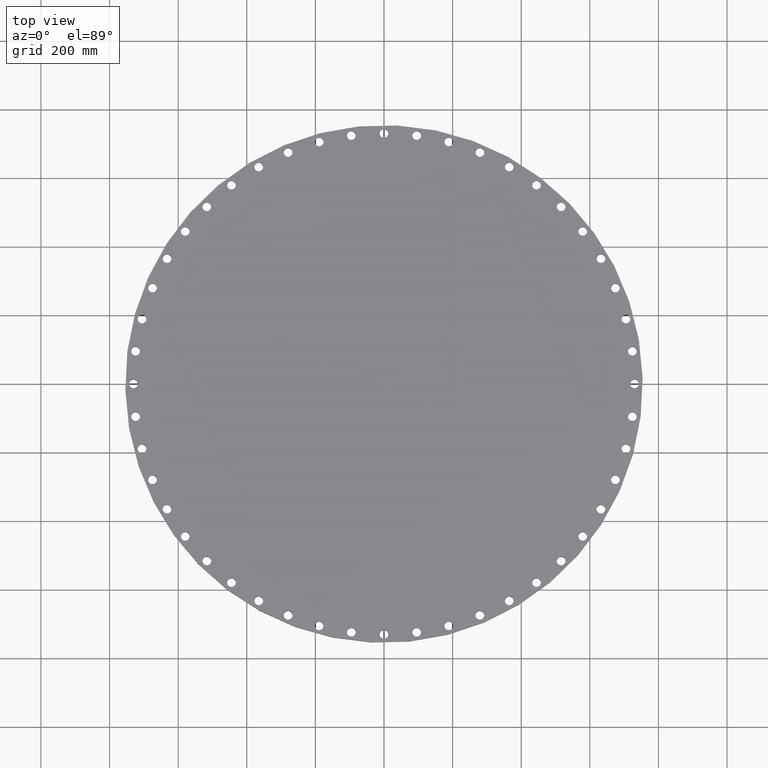
[diagram: clean part render]
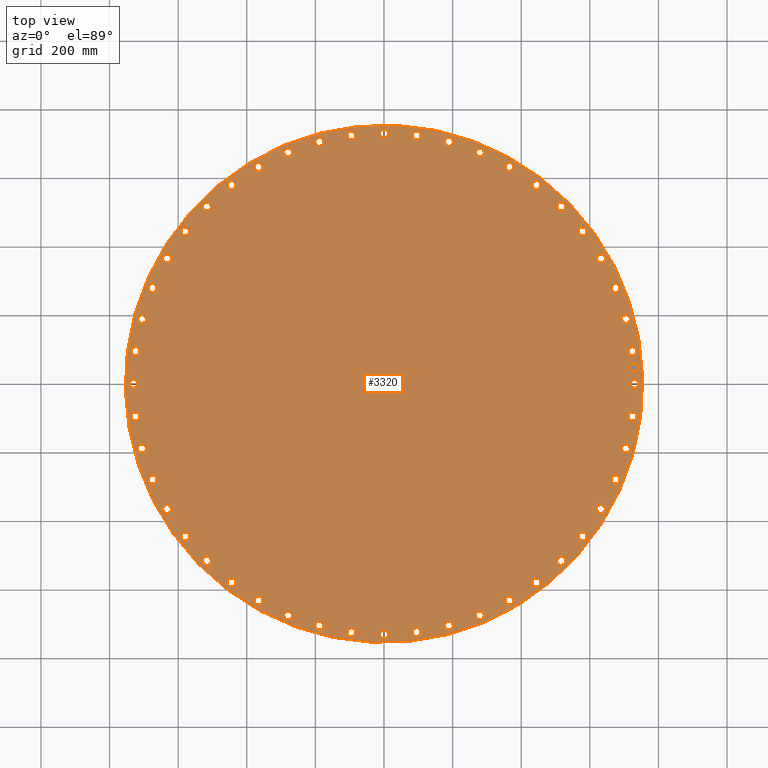
[diagram: same view with one face highlighted and labeled with its STEP entity id]
A machine part, top view. The second image highlights one B-rep face of the part: STEP entity #3320.
In plain terms, the highlighted planar face has unit normal (0, 0, -1).
Its self-contained STEP definition (entity closure, byte-faithful):
#65=AXIS2_PLACEMENT_3D('Circle Axis2P3D',#63,#64,$) ;
#82=AXIS2_PLACEMENT_3D('Circle Axis2P3D',#80,#81,$) ;
#115=AXIS2_PLACEMENT_3D('Circle Axis2P3D',#113,#114,$) ;
#139=AXIS2_PLACEMENT_3D('Circle Axis2P3D',#137,#138,$) ;
#1101=AXIS2_PLACEMENT_3D('Circle Axis2P3D',#1099,#1100,$) ;
#1113=AXIS2_PLACEMENT_3D('Circle Axis2P3D',#1111,#1112,$) ;
#1144=AXIS2_PLACEMENT_3D('Circle Axis2P3D',#1142,#1143,$) ;
#1156=AXIS2_PLACEMENT_3D('Circle Axis2P3D',#1154,#1155,$) ;
#1187=AXIS2_PLACEMENT_3D('Circle Axis2P3D',#1185,#1186,$) ;
#1199=AXIS2_PLACEMENT_3D('Circle Axis2P3D',#1197,#1198,$) ;
#1230=AXIS2_PLACEMENT_3D('Circle Axis2P3D',#1228,#1229,$) ;
#1242=AXIS2_PLACEMENT_3D('Circle Axis2P3D',#1240,#1241,$) ;
#1273=AXIS2_PLACEMENT_3D('Circle Axis2P3D',#1271,#1272,$) ;
#1285=AXIS2_PLACEMENT_3D('Circle Axis2P3D',#1283,#1284,$) ;
#1316=AXIS2_PLACEMENT_3D('Circle Axis2P3D',#1314,#1315,$) ;
#1328=AXIS2_PLACEMENT_3D('Circle Axis2P3D',#1326,#1327,$) ;
#1359=AXIS2_PLACEMENT_3D('Circle Axis2P3D',#1357,#1358,$) ;
#1371=AXIS2_PLACEMENT_3D('Circle Axis2P3D',#1369,#1370,$) ;
#1402=AXIS2_PLACEMENT_3D('Circle Axis2P3D',#1400,#1401,$) ;
#1414=AXIS2_PLACEMENT_3D('Circle Axis2P3D',#1412,#1413,$) ;
#1445=AXIS2_PLACEMENT_3D('Circle Axis2P3D',#1443,#1444,$) ;
#1457=AXIS2_PLACEMENT_3D('Circle Axis2P3D',#1455,#1456,$) ;
#1488=AXIS2_PLACEMENT_3D('Circle Axis2P3D',#1486,#1487,$) ;
#1500=AXIS2_PLACEMENT_3D('Circle Axis2P3D',#1498,#1499,$) ;
#1531=AXIS2_PLACEMENT_3D('Circle Axis2P3D',#1529,#1530,$) ;
#1543=AXIS2_PLACEMENT_3D('Circle Axis2P3D',#1541,#1542,$) ;
#1574=AXIS2_PLACEMENT_3D('Circle Axis2P3D',#1572,#1573,$) ;
#1586=AXIS2_PLACEMENT_3D('Circle Axis2P3D',#1584,#1585,$) ;
#1617=AXIS2_PLACEMENT_3D('Circle Axis2P3D',#1615,#1616,$) ;
#1629=AXIS2_PLACEMENT_3D('Circle Axis2P3D',#1627,#1628,$) ;
#1660=AXIS2_PLACEMENT_3D('Circle Axis2P3D',#1658,#1659,$) ;
#1672=AXIS2_PLACEMENT_3D('Circle Axis2P3D',#1670,#1671,$) ;
#1703=AXIS2_PLACEMENT_3D('Circle Axis2P3D',#1701,#1702,$) ;
#1715=AXIS2_PLACEMENT_3D('Circle Axis2P3D',#1713,#1714,$) ;
#1746=AXIS2_PLACEMENT_3D('Circle Axis2P3D',#1744,#1745,$) ;
#1758=AXIS2_PLACEMENT_3D('Circle Axis2P3D',#1756,#1757,$) ;
#1789=AXIS2_PLACEMENT_3D('Circle Axis2P3D',#1787,#1788,$) ;
#1801=AXIS2_PLACEMENT_3D('Circle Axis2P3D',#1799,#1800,$) ;
#1832=AXIS2_PLACEMENT_3D('Circle Axis2P3D',#1830,#1831,$) ;
#1844=AXIS2_PLACEMENT_3D('Circle Axis2P3D',#1842,#1843,$) ;
#1875=AXIS2_PLACEMENT_3D('Circle Axis2P3D',#1873,#1874,$) ;
#1887=AXIS2_PLACEMENT_3D('Circle Axis2P3D',#1885,#1886,$) ;
#1918=AXIS2_PLACEMENT_3D('Circle Axis2P3D',#1916,#1917,$) ;
#1930=AXIS2_PLACEMENT_3D('Circle Axis2P3D',#1928,#1929,$) ;
#1961=AXIS2_PLACEMENT_3D('Circle Axis2P3D',#1959,#1960,$) ;
#1973=AXIS2_PLACEMENT_3D('Circle Axis2P3D',#1971,#1972,$) ;
#2004=AXIS2_PLACEMENT_3D('Circle Axis2P3D',#2002,#2003,$) ;
#2016=AXIS2_PLACEMENT_3D('Circle Axis2P3D',#2014,#2015,$) ;
#2047=AXIS2_PLACEMENT_3D('Circle Axis2P3D',#2045,#2046,$) ;
#2059=AXIS2_PLACEMENT_3D('Circle Axis2P3D',#2057,#2058,$) ;
#2090=AXIS2_PLACEMENT_3D('Circle Axis2P3D',#2088,#2089,$) ;
#2102=AXIS2_PLACEMENT_3D('Circle Axis2P3D',#2100,#2101,$) ;
#2133=AXIS2_PLACEMENT_3D('Circle Axis2P3D',#2131,#2132,$) ;
#2145=AXIS2_PLACEMENT_3D('Circle Axis2P3D',#2143,#2144,$) ;
#2176=AXIS2_PLACEMENT_3D('Circle Axis2P3D',#2174,#2175,$) ;
#2188=AXIS2_PLACEMENT_3D('Circle Axis2P3D',#2186,#2187,$) ;
#2219=AXIS2_PLACEMENT_3D('Circle Axis2P3D',#2217,#2218,$) ;
#2231=AXIS2_PLACEMENT_3D('Circle Axis2P3D',#2229,#2230,$) ;
#2262=AXIS2_PLACEMENT_3D('Circle Axis2P3D',#2260,#2261,$) ;
#2274=AXIS2_PLACEMENT_3D('Circle Axis2P3D',#2272,#2273,$) ;
#2305=AXIS2_PLACEMENT_3D('Circle Axis2P3D',#2303,#2304,$) ;
#2317=AXIS2_PLACEMENT_3D('Circle Axis2P3D',#2315,#2316,$) ;
#2348=AXIS2_PLACEMENT_3D('Circle Axis2P3D',#2346,#2347,$) ;
#2360=AXIS2_PLACEMENT_3D('Circle Axis2P3D',#2358,#2359,$) ;
#2391=AXIS2_PLACEMENT_3D('Circle Axis2P3D',#2389,#2390,$) ;
#2403=AXIS2_PLACEMENT_3D('Circle Axis2P3D',#2401,#2402,$) ;
#2434=AXIS2_PLACEMENT_3D('Circle Axis2P3D',#2432,#2433,$) ;
#2446=AXIS2_PLACEMENT_3D('Circle Axis2P3D',#2444,#2445,$) ;
#2477=AXIS2_PLACEMENT_3D('Circle Axis2P3D',#2475,#2476,$) ;
#2489=AXIS2_PLACEMENT_3D('Circle Axis2P3D',#2487,#2488,$) ;
#2520=AXIS2_PLACEMENT_3D('Circle Axis2P3D',#2518,#2519,$) ;
#2532=AXIS2_PLACEMENT_3D('Circle Axis2P3D',#2530,#2531,$) ;
#2563=AXIS2_PLACEMENT_3D('Circle Axis2P3D',#2561,#2562,$) ;
#2575=AXIS2_PLACEMENT_3D('Circle Axis2P3D',#2573,#2574,$) ;
#2606=AXIS2_PLACEMENT_3D('Circle Axis2P3D',#2604,#2605,$) ;
#2618=AXIS2_PLACEMENT_3D('Circle Axis2P3D',#2616,#2617,$) ;
#2649=AXIS2_PLACEMENT_3D('Circle Axis2P3D',#2647,#2648,$) ;
#2661=AXIS2_PLACEMENT_3D('Circle Axis2P3D',#2659,#2660,$) ;
#2692=AXIS2_PLACEMENT_3D('Circle Axis2P3D',#2690,#2691,$) ;
#2704=AXIS2_PLACEMENT_3D('Circle Axis2P3D',#2702,#2703,$) ;
#2735=AXIS2_PLACEMENT_3D('Circle Axis2P3D',#2733,#2734,$) ;
#2747=AXIS2_PLACEMENT_3D('Circle Axis2P3D',#2745,#2746,$) ;
#2778=AXIS2_PLACEMENT_3D('Circle Axis2P3D',#2776,#2777,$) ;
#2790=AXIS2_PLACEMENT_3D('Circle Axis2P3D',#2788,#2789,$) ;
#2821=AXIS2_PLACEMENT_3D('Circle Axis2P3D',#2819,#2820,$) ;
#2833=AXIS2_PLACEMENT_3D('Circle Axis2P3D',#2831,#2832,$) ;
#2864=AXIS2_PLACEMENT_3D('Circle Axis2P3D',#2862,#2863,$) ;
#2876=AXIS2_PLACEMENT_3D('Circle Axis2P3D',#2874,#2875,$) ;
#2907=AXIS2_PLACEMENT_3D('Circle Axis2P3D',#2905,#2906,$) ;
#2919=AXIS2_PLACEMENT_3D('Circle Axis2P3D',#2917,#2918,$) ;
#2950=AXIS2_PLACEMENT_3D('Circle Axis2P3D',#2948,#2949,$) ;
#2962=AXIS2_PLACEMENT_3D('Circle Axis2P3D',#2960,#2961,$) ;
#2993=AXIS2_PLACEMENT_3D('Circle Axis2P3D',#2991,#2992,$) ;
#3005=AXIS2_PLACEMENT_3D('Circle Axis2P3D',#3003,#3004,$) ;
#3036=AXIS2_PLACEMENT_3D('Circle Axis2P3D',#3034,#3035,$) ;
#3048=AXIS2_PLACEMENT_3D('Circle Axis2P3D',#3046,#3047,$) ;
#3079=AXIS2_PLACEMENT_3D('Circle Axis2P3D',#3077,#3078,$) ;
#3091=AXIS2_PLACEMENT_3D('Circle Axis2P3D',#3089,#3090,$) ;
#3104=AXIS2_PLACEMENT_3D('Plane Axis2P3D',#3101,#3102,#3103) ;
#3304=AXIS2_PLACEMENT_3D('Circle Axis2P3D',#3302,#3303,$) ;
#3313=AXIS2_PLACEMENT_3D('Circle Axis2P3D',#3311,#3312,$) ;
#46=CARTESIAN_POINT('Vertex',(28.3112087192,0.239712769303,2.32000000001)) ;
#60=CARTESIAN_POINT('Vertex',(29.1887912811,-0.239712769303,2.32000000001)) ;
#63=CARTESIAN_POINT('Axis2P3D Location',(28.7500000001,0.,2.32000000001)) ;
#80=CARTESIAN_POINT('Axis2P3D Location',(28.7500000001,0.,2.32000000001)) ;
#110=CARTESIAN_POINT('Vertex',(-14.2341442412,-26.0554262626,2.32000000001)) ;
#113=CARTESIAN_POINT('Axis2P3D Location',(0.,0.,2.32000000001)) ;
#117=CARTESIAN_POINT('Vertex',(14.2341442412,26.0554262626,2.32000000001)) ;
#137=CARTESIAN_POINT('Axis2P3D Location',(0.,0.,2.32000000001)) ;
#1089=CARTESIAN_POINT('Vertex',(-28.1002911989,3.45769227793,2.32000000001)) ;
#1096=CARTESIAN_POINT('Vertex',(-28.9077883303,4.04756377475,2.32000000001)) ;
#1099=CARTESIAN_POINT('Axis2P3D Location',(-28.5040397646,3.75262802634,2.32000000001)) ;
#1111=CARTESIAN_POINT('Axis2P3D Location',(-28.5040397646,3.75262802634,2.32000000001)) ;
#1132=CARTESIAN_POINT('Vertex',(27.4085699054,-7.09593525163,2.32000000001)) ;
#1139=CARTESIAN_POINT('Vertex',(28.1321651065,-7.78615984182,2.32000000001)) ;
#1142=CARTESIAN_POINT('Axis2P3D Location',(27.7703675059,-7.44104754673,2.32000000001)) ;
#1154=CARTESIAN_POINT('Axis2P3D Location',(27.7703675059,-7.44104754673,2.32000000001)) ;
#1175=CARTESIAN_POINT('Vertex',(-27.4085699054,7.09593525163,2.32000000001)) ;
#1182=CARTESIAN_POINT('Vertex',(-28.1321651065,7.78615984182,2.32000000001)) ;
#1185=CARTESIAN_POINT('Axis2P3D Location',(-27.7703675059,7.44104754673,2.32000000001)) ;
#1197=CARTESIAN_POINT('Axis2P3D Location',(-27.7703675059,7.44104754673,2.32000000001)) ;
#1218=CARTESIAN_POINT('Vertex',(26.2478803816,-10.6127648058,2.32000000001)) ;
#1225=CARTESIAN_POINT('Vertex',(26.875192738,-11.3915325553,2.32000000001)) ;
#1228=CARTESIAN_POINT('Axis2P3D Location',(26.5615365598,-11.0021486805,2.32000000001)) ;
#1240=CARTESIAN_POINT('Axis2P3D Location',(26.5615365598,-11.0021486805,2.32000000001)) ;
#1261=CARTESIAN_POINT('Vertex',(-26.2478803816,10.6127648058,2.32000000001)) ;
#1268=CARTESIAN_POINT('Vertex',(-26.875192738,11.3915325553,2.32000000001)) ;
#1271=CARTESIAN_POINT('Axis2P3D Location',(-26.5615365598,11.0021486805,2.32000000001)) ;
#1283=CARTESIAN_POINT('Axis2P3D Location',(-26.5615365598,11.0021486805,2.32000000001)) ;
#1304=CARTESIAN_POINT('Vertex',(24.6380823473,-13.9480070118,2.32000000001)) ;
#1311=CARTESIAN_POINT('Vertex',(25.1583783705,-14.8019929884,2.32000000001)) ;
#1314=CARTESIAN_POINT('Axis2P3D Location',(24.8982303589,-14.3750000001,2.32000000001)) ;
#1326=CARTESIAN_POINT('Axis2P3D Location',(24.8982303589,-14.3750000001,2.32000000001)) ;
#1347=CARTESIAN_POINT('Vertex',(-24.6380823473,13.9480070118,2.32000000001)) ;
#1354=CARTESIAN_POINT('Vertex',(-25.1583783705,14.8019929884,2.32000000001)) ;
#1357=CARTESIAN_POINT('Axis2P3D Location',(-24.8982303589,14.3750000001,2.32000000001)) ;
#1369=CARTESIAN_POINT('Axis2P3D Location',(-24.8982303589,14.3750000001,2.32000000001)) ;
#1390=CARTESIAN_POINT('Vertex',(22.606719893,-17.0445949506,2.32000000001)) ;
#1397=CARTESIAN_POINT('Vertex',(23.0110971739,-17.9591872175,2.32000000001)) ;
#1400=CARTESIAN_POINT('Axis2P3D Location',(22.8089085335,-17.5018910841,2.32000000001)) ;
#1412=CARTESIAN_POINT('Axis2P3D Location',(22.8089085335,-17.5018910841,2.32000000001)) ;
#1433=CARTESIAN_POINT('Vertex',(-22.606719893,17.0445949506,2.32000000001)) ;
#1440=CARTESIAN_POINT('Vertex',(-23.0110971739,17.9591872175,2.32000000001)) ;
#1443=CARTESIAN_POINT('Axis2P3D Location',(-22.8089085335,17.5018910841,2.32000000001)) ;
#1455=CARTESIAN_POINT('Axis2P3D Location',(-22.8089085335,17.5018910841,2.32000000001)) ;
#1476=CARTESIAN_POINT('Vertex',(20.1885501936,-19.8495451442,2.32000000001)) ;
#1483=CARTESIAN_POINT('Vertex',(20.4700897248,-20.8090947742,2.32000000001)) ;
#1486=CARTESIAN_POINT('Axis2P3D Location',(20.3293199592,-20.3293199592,2.32000000001)) ;
#1498=CARTESIAN_POINT('Axis2P3D Location',(20.3293199592,-20.3293199592,2.32000000001)) ;
#1519=CARTESIAN_POINT('Vertex',(-20.1885501936,19.8495451442,2.32000000001)) ;
#1526=CARTESIAN_POINT('Vertex',(-20.4700897248,20.8090947742,2.32000000001)) ;
#1529=CARTESIAN_POINT('Axis2P3D Location',(-20.3293199592,20.3293199592,2.32000000001)) ;
#1541=CARTESIAN_POINT('Axis2P3D Location',(-20.3293199592,20.3293199592,2.32000000001)) ;
#1562=CARTESIAN_POINT('Vertex',(17.4249488031,-22.314864117,2.32000000001)) ;
#1569=CARTESIAN_POINT('Vertex',(17.5788333651,-23.3029529499,2.32000000001)) ;
#1572=CARTESIAN_POINT('Axis2P3D Location',(17.5018910841,-22.8089085335,2.32000000001)) ;
#1584=CARTESIAN_POINT('Axis2P3D Location',(17.5018910841,-22.8089085335,2.32000000001)) ;
#1605=CARTESIAN_POINT('Vertex',(-17.4249488031,22.314864117,2.32000000001)) ;
#1612=CARTESIAN_POINT('Vertex',(-17.5788333651,23.3029529499,2.32000000001)) ;
#1615=CARTESIAN_POINT('Axis2P3D Location',(-17.5018910841,22.8089085335,2.32000000001)) ;
#1627=CARTESIAN_POINT('Axis2P3D Location',(-17.5018910841,22.8089085335,2.32000000001)) ;
#1648=CARTESIAN_POINT('Vertex',(14.3632017074,-24.398369578,2.32000000001)) ;
#1655=CARTESIAN_POINT('Vertex',(14.3867982927,-25.3980911398,2.32000000001)) ;
#1658=CARTESIAN_POINT('Axis2P3D Location',(14.3750000001,-24.8982303589,2.32000000001)) ;
#1670=CARTESIAN_POINT('Axis2P3D Location',(14.3750000001,-24.8982303589,2.32000000001)) ;
#1691=CARTESIAN_POINT('Vertex',(-14.3632017074,24.398369578,2.32000000001)) ;
#1698=CARTESIAN_POINT('Vertex',(-14.3867982927,25.3980911398,2.32000000001)) ;
#1701=CARTESIAN_POINT('Axis2P3D Location',(-14.3750000001,24.8982303589,2.32000000001)) ;
#1713=CARTESIAN_POINT('Axis2P3D Location',(-14.3750000001,24.8982303589,2.32000000001)) ;
#1734=CARTESIAN_POINT('Vertex',(11.0556962483,-26.064412171,2.32000000001)) ;
#1741=CARTESIAN_POINT('Vertex',(10.9486011128,-27.0586609487,2.32000000001)) ;
#1744=CARTESIAN_POINT('Axis2P3D Location',(11.0021486805,-26.5615365598,2.32000000001)) ;
#1756=CARTESIAN_POINT('Axis2P3D Location',(11.0021486805,-26.5615365598,2.32000000001)) ;
#1777=CARTESIAN_POINT('Vertex',(-11.0556962483,26.064412171,2.32000000001)) ;
#1784=CARTESIAN_POINT('Vertex',(-10.9486011128,27.0586609487,2.32000000001)) ;
#1787=CARTESIAN_POINT('Axis2P3D Location',(-11.0021486805,26.5615365598,2.32000000001)) ;
#1799=CARTESIAN_POINT('Axis2P3D Location',(-11.0021486805,26.5615365598,2.32000000001)) ;
#1820=CARTESIAN_POINT('Vertex',(7.55902476115,-27.2844854453,2.32000000001)) ;
#1827=CARTESIAN_POINT('Vertex',(7.3230703323,-28.2562495666,2.32000000001)) ;
#1830=CARTESIAN_POINT('Axis2P3D Location',(7.44104754673,-27.7703675059,2.32000000001)) ;
#1842=CARTESIAN_POINT('Axis2P3D Location',(7.44104754673,-27.7703675059,2.32000000001)) ;
#1863=CARTESIAN_POINT('Vertex',(-7.55902476115,27.2844854453,2.32000000001)) ;
#1870=CARTESIAN_POINT('Vertex',(-7.3230703323,28.2562495666,2.32000000001)) ;
#1873=CARTESIAN_POINT('Axis2P3D Location',(-7.44104754673,27.7703675059,2.32000000001)) ;
#1885=CARTESIAN_POINT('Axis2P3D Location',(-7.44104754673,27.7703675059,2.32000000001)) ;
#1906=CARTESIAN_POINT('Vertex',(3.93301626459,-28.0377136089,2.32000000001)) ;
#1913=CARTESIAN_POINT('Vertex',(3.57223978809,-28.9703659203,2.32000000001)) ;
#1916=CARTESIAN_POINT('Axis2P3D Location',(3.75262802634,-28.5040397646,2.32000000001)) ;
#1928=CARTESIAN_POINT('Axis2P3D Location',(3.75262802634,-28.5040397646,2.32000000001)) ;
#1949=CARTESIAN_POINT('Vertex',(-3.93301626459,28.0377136089,2.32000000001)) ;
#1956=CARTESIAN_POINT('Vertex',(-3.57223978809,28.9703659203,2.32000000001)) ;
#1959=CARTESIAN_POINT('Axis2P3D Location',(-3.75262802634,28.5040397646,2.32000000001)) ;
#1971=CARTESIAN_POINT('Axis2P3D Location',(-3.75262802634,28.5040397646,2.32000000001)) ;
#1992=CARTESIAN_POINT('Vertex',(0.239712769303,-28.3112087192,2.32000000001)) ;
#1999=CARTESIAN_POINT('Vertex',(-0.239712769303,-29.1887912811,2.32000000001)) ;
#2002=CARTESIAN_POINT('Axis2P3D Location',(-2.71542997904E-015,-28.7500000001,2.32000000001)) ;
#2014=CARTESIAN_POINT('Axis2P3D Location',(-2.71542997904E-015,-28.7500000001,2.32000000001)) ;
#2035=CARTESIAN_POINT('Vertex',(-0.239712769303,28.3112087192,2.32000000001)) ;
#2042=CARTESIAN_POINT('Vertex',(0.239712769303,29.1887912811,2.32000000001)) ;
#2045=CARTESIAN_POINT('Axis2P3D Location',(-5.28128932134E-015,28.7500000001,2.32000000001)) ;
#2057=CARTESIAN_POINT('Axis2P3D Location',(-5.28128932134E-015,28.7500000001,2.32000000001)) ;
#2078=CARTESIAN_POINT('Vertex',(-3.45769227793,-28.1002911989,2.32000000001)) ;
#2085=CARTESIAN_POINT('Vertex',(-4.04756377475,-28.9077883303,2.32000000001)) ;
#2088=CARTESIAN_POINT('Axis2P3D Location',(-3.75262802634,-28.5040397646,2.32000000001)) ;
#2100=CARTESIAN_POINT('Axis2P3D Location',(-3.75262802634,-28.5040397646,2.32000000001)) ;
#2121=CARTESIAN_POINT('Vertex',(3.45769227793,28.1002911989,2.32000000001)) ;
#2128=CARTESIAN_POINT('Vertex',(4.04756377475,28.9077883303,2.32000000001)) ;
#2131=CARTESIAN_POINT('Axis2P3D Location',(3.75262802634,28.5040397646,2.32000000001)) ;
#2143=CARTESIAN_POINT('Axis2P3D Location',(3.75262802634,28.5040397646,2.32000000001)) ;
#2164=CARTESIAN_POINT('Vertex',(-7.09593525163,-27.4085699054,2.32000000001)) ;
#2171=CARTESIAN_POINT('Vertex',(-7.78615984182,-28.1321651065,2.32000000001)) ;
#2174=CARTESIAN_POINT('Axis2P3D Location',(-7.44104754673,-27.7703675059,2.32000000001)) ;
#2186=CARTESIAN_POINT('Axis2P3D Location',(-7.44104754673,-27.7703675059,2.32000000001)) ;
#2207=CARTESIAN_POINT('Vertex',(7.09593525163,27.4085699054,2.32000000001)) ;
#2214=CARTESIAN_POINT('Vertex',(7.78615984182,28.1321651065,2.32000000001)) ;
#2217=CARTESIAN_POINT('Axis2P3D Location',(7.44104754673,27.7703675059,2.32000000001)) ;
#2229=CARTESIAN_POINT('Axis2P3D Location',(7.44104754673,27.7703675059,2.32000000001)) ;
#2250=CARTESIAN_POINT('Vertex',(-10.6127648058,-26.2478803816,2.32000000001)) ;
#2257=CARTESIAN_POINT('Vertex',(-11.3915325553,-26.875192738,2.32000000001)) ;
#2260=CARTESIAN_POINT('Axis2P3D Location',(-11.0021486805,-26.5615365598,2.32000000001)) ;
#2272=CARTESIAN_POINT('Axis2P3D Location',(-11.0021486805,-26.5615365598,2.32000000001)) ;
#2293=CARTESIAN_POINT('Vertex',(10.6127648058,26.2478803816,2.32000000001)) ;
#2300=CARTESIAN_POINT('Vertex',(11.3915325553,26.875192738,2.32000000001)) ;
#2303=CARTESIAN_POINT('Axis2P3D Location',(11.0021486805,26.5615365598,2.32000000001)) ;
#2315=CARTESIAN_POINT('Axis2P3D Location',(11.0021486805,26.5615365598,2.32000000001)) ;
#2336=CARTESIAN_POINT('Vertex',(-13.9480070118,-24.6380823473,2.32000000001)) ;
#2343=CARTESIAN_POINT('Vertex',(-14.8019929884,-25.1583783705,2.32000000001)) ;
#2346=CARTESIAN_POINT('Axis2P3D Location',(-14.3750000001,-24.8982303589,2.32000000001)) ;
#2358=CARTESIAN_POINT('Axis2P3D Location',(-14.3750000001,-24.8982303589,2.32000000001)) ;
#2379=CARTESIAN_POINT('Vertex',(13.9480070118,24.6380823473,2.32000000001)) ;
#2386=CARTESIAN_POINT('Vertex',(14.8019929884,25.1583783705,2.32000000001)) ;
#2389=CARTESIAN_POINT('Axis2P3D Location',(14.3750000001,24.8982303589,2.32000000001)) ;
#2401=CARTESIAN_POINT('Axis2P3D Location',(14.3750000001,24.8982303589,2.32000000001)) ;
#2422=CARTESIAN_POINT('Vertex',(-17.0445949506,-22.606719893,2.32000000001)) ;
#2429=CARTESIAN_POINT('Vertex',(-17.9591872175,-23.0110971739,2.32000000001)) ;
#2432=CARTESIAN_POINT('Axis2P3D Location',(-17.5018910841,-22.8089085335,2.32000000001)) ;
#2444=CARTESIAN_POINT('Axis2P3D Location',(-17.5018910841,-22.8089085335,2.32000000001)) ;
#2465=CARTESIAN_POINT('Vertex',(17.0445949506,22.606719893,2.32000000001)) ;
#2472=CARTESIAN_POINT('Vertex',(17.9591872175,23.0110971739,2.32000000001)) ;
#2475=CARTESIAN_POINT('Axis2P3D Location',(17.5018910841,22.8089085335,2.32000000001)) ;
#2487=CARTESIAN_POINT('Axis2P3D Location',(17.5018910841,22.8089085335,2.32000000001)) ;
#2508=CARTESIAN_POINT('Vertex',(-19.8495451442,-20.1885501936,2.32000000001)) ;
#2515=CARTESIAN_POINT('Vertex',(-20.8090947742,-20.4700897248,2.32000000001)) ;
#2518=CARTESIAN_POINT('Axis2P3D Location',(-20.3293199592,-20.3293199592,2.32000000001)) ;
#2530=CARTESIAN_POINT('Axis2P3D Location',(-20.3293199592,-20.3293199592,2.32000000001)) ;
#2551=CARTESIAN_POINT('Vertex',(19.8495451442,20.1885501936,2.32000000001)) ;
#2558=CARTESIAN_POINT('Vertex',(20.8090947742,20.4700897248,2.32000000001)) ;
#2561=CARTESIAN_POINT('Axis2P3D Location',(20.3293199592,20.3293199592,2.32000000001)) ;
#2573=CARTESIAN_POINT('Axis2P3D Location',(20.3293199592,20.3293199592,2.32000000001)) ;
#2594=CARTESIAN_POINT('Vertex',(-22.314864117,-17.4249488031,2.32000000001)) ;
#2601=CARTESIAN_POINT('Vertex',(-23.3029529499,-17.5788333651,2.32000000001)) ;
#2604=CARTESIAN_POINT('Axis2P3D Location',(-22.8089085335,-17.5018910841,2.32000000001)) ;
#2616=CARTESIAN_POINT('Axis2P3D Location',(-22.8089085335,-17.5018910841,2.32000000001)) ;
#2637=CARTESIAN_POINT('Vertex',(22.314864117,17.4249488031,2.32000000001)) ;
#2644=CARTESIAN_POINT('Vertex',(23.3029529499,17.5788333651,2.32000000001)) ;
#2647=CARTESIAN_POINT('Axis2P3D Location',(22.8089085335,17.5018910841,2.32000000001)) ;
#2659=CARTESIAN_POINT('Axis2P3D Location',(22.8089085335,17.5018910841,2.32000000001)) ;
#2680=CARTESIAN_POINT('Vertex',(-24.398369578,-14.3632017074,2.32000000001)) ;
#2687=CARTESIAN_POINT('Vertex',(-25.3980911398,-14.3867982927,2.32000000001)) ;
#2690=CARTESIAN_POINT('Axis2P3D Location',(-24.8982303589,-14.3750000001,2.32000000001)) ;
#2702=CARTESIAN_POINT('Axis2P3D Location',(-24.8982303589,-14.3750000001,2.32000000001)) ;
#2723=CARTESIAN_POINT('Vertex',(24.398369578,14.3632017074,2.32000000001)) ;
#2730=CARTESIAN_POINT('Vertex',(25.3980911398,14.3867982927,2.32000000001)) ;
#2733=CARTESIAN_POINT('Axis2P3D Location',(24.8982303589,14.3750000001,2.32000000001)) ;
#2745=CARTESIAN_POINT('Axis2P3D Location',(24.8982303589,14.3750000001,2.32000000001)) ;
#2766=CARTESIAN_POINT('Vertex',(-26.064412171,-11.0556962483,2.32000000001)) ;
#2773=CARTESIAN_POINT('Vertex',(-27.0586609487,-10.9486011128,2.32000000001)) ;
#2776=CARTESIAN_POINT('Axis2P3D Location',(-26.5615365598,-11.0021486805,2.32000000001)) ;
#2788=CARTESIAN_POINT('Axis2P3D Location',(-26.5615365598,-11.0021486805,2.32000000001)) ;
#2809=CARTESIAN_POINT('Vertex',(26.064412171,11.0556962483,2.32000000001)) ;
#2816=CARTESIAN_POINT('Vertex',(27.0586609487,10.9486011128,2.32000000001)) ;
#2819=CARTESIAN_POINT('Axis2P3D Location',(26.5615365598,11.0021486805,2.32000000001)) ;
#2831=CARTESIAN_POINT('Axis2P3D Location',(26.5615365598,11.0021486805,2.32000000001)) ;
#2852=CARTESIAN_POINT('Vertex',(-27.2844854453,-7.55902476115,2.32000000001)) ;
#2859=CARTESIAN_POINT('Vertex',(-28.2562495666,-7.3230703323,2.32000000001)) ;
#2862=CARTESIAN_POINT('Axis2P3D Location',(-27.7703675059,-7.44104754673,2.32000000001)) ;
#2874=CARTESIAN_POINT('Axis2P3D Location',(-27.7703675059,-7.44104754673,2.32000000001)) ;
#2895=CARTESIAN_POINT('Vertex',(27.2844854453,7.55902476115,2.32000000001)) ;
#2902=CARTESIAN_POINT('Vertex',(28.2562495666,7.3230703323,2.32000000001)) ;
#2905=CARTESIAN_POINT('Axis2P3D Location',(27.7703675059,7.44104754673,2.32000000001)) ;
#2917=CARTESIAN_POINT('Axis2P3D Location',(27.7703675059,7.44104754673,2.32000000001)) ;
#2938=CARTESIAN_POINT('Vertex',(-28.0377136089,-3.93301626459,2.32000000001)) ;
#2945=CARTESIAN_POINT('Vertex',(-28.9703659203,-3.57223978809,2.32000000001)) ;
#2948=CARTESIAN_POINT('Axis2P3D Location',(-28.5040397646,-3.75262802634,2.32000000001)) ;
#2960=CARTESIAN_POINT('Axis2P3D Location',(-28.5040397646,-3.75262802634,2.32000000001)) ;
#2981=CARTESIAN_POINT('Vertex',(28.0377136089,3.93301626459,2.32000000001)) ;
#2988=CARTESIAN_POINT('Vertex',(28.9703659203,3.57223978809,2.32000000001)) ;
#2991=CARTESIAN_POINT('Axis2P3D Location',(28.5040397646,3.75262802634,2.32000000001)) ;
#3003=CARTESIAN_POINT('Axis2P3D Location',(28.5040397646,3.75262802634,2.32000000001)) ;
#3024=CARTESIAN_POINT('Vertex',(-28.3112087192,-0.239712769303,2.32000000001)) ;
#3031=CARTESIAN_POINT('Vertex',(-29.1887912811,0.239712769303,2.32000000001)) ;
#3034=CARTESIAN_POINT('Axis2P3D Location',(-28.7500000001,-3.52085954756E-015,2.32000000001)) ;
#3046=CARTESIAN_POINT('Axis2P3D Location',(-28.7500000001,-3.52085954756E-015,2.32000000001)) ;
#3067=CARTESIAN_POINT('Vertex',(28.1002911989,-3.45769227793,2.32000000001)) ;
#3074=CARTESIAN_POINT('Vertex',(28.9077883303,-4.04756377475,2.32000000001)) ;
#3077=CARTESIAN_POINT('Axis2P3D Location',(28.5040397646,-3.75262802634,2.32000000001)) ;
#3089=CARTESIAN_POINT('Axis2P3D Location',(28.5040397646,-3.75262802634,2.32000000001)) ;
#3101=CARTESIAN_POINT('Axis2P3D Location',(0.,29.6900000001,2.32000000001)) ;
#3302=CARTESIAN_POINT('Axis2P3D Location',(28.6884440432,1.88033996537,2.32000000001)) ;
#3306=CARTESIAN_POINT('Vertex',(28.6557424786,2.379269427,2.32000000001)) ;
#3308=CARTESIAN_POINT('Vertex',(28.7211456078,1.38141050375,2.32000000001)) ;
#3311=CARTESIAN_POINT('Axis2P3D Location',(28.6884440432,1.88033996537,2.32000000001)) ;
#64=DIRECTION('Axis2P3D Direction',(0.,-0.,-0.0393700787402)) ;
#81=DIRECTION('Axis2P3D Direction',(0.,-0.,-0.0393700787402)) ;
#114=DIRECTION('Axis2P3D Direction',(0.,0.,-0.0393700787402)) ;
#138=DIRECTION('Axis2P3D Direction',(0.,0.,-0.0393700787402)) ;
#1100=DIRECTION('Axis2P3D Direction',(0.,0.,-0.0393700787402)) ;
#1112=DIRECTION('Axis2P3D Direction',(0.,0.,-0.0393700787402)) ;
#1143=DIRECTION('Axis2P3D Direction',(0.,-0.,-0.0393700787402)) ;
#1155=DIRECTION('Axis2P3D Direction',(0.,-0.,-0.0393700787402)) ;
#1186=DIRECTION('Axis2P3D Direction',(0.,0.,-0.0393700787402)) ;
#1198=DIRECTION('Axis2P3D Direction',(0.,0.,-0.0393700787402)) ;
#1229=DIRECTION('Axis2P3D Direction',(0.,-0.,-0.0393700787402)) ;
#1241=DIRECTION('Axis2P3D Direction',(0.,-0.,-0.0393700787402)) ;
#1272=DIRECTION('Axis2P3D Direction',(0.,0.,-0.0393700787402)) ;
#1284=DIRECTION('Axis2P3D Direction',(0.,0.,-0.0393700787402)) ;
#1315=DIRECTION('Axis2P3D Direction',(0.,-0.,-0.0393700787402)) ;
#1327=DIRECTION('Axis2P3D Direction',(0.,-0.,-0.0393700787402)) ;
#1358=DIRECTION('Axis2P3D Direction',(0.,0.,-0.0393700787402)) ;
#1370=DIRECTION('Axis2P3D Direction',(0.,0.,-0.0393700787402)) ;
#1401=DIRECTION('Axis2P3D Direction',(0.,-0.,-0.0393700787402)) ;
#1413=DIRECTION('Axis2P3D Direction',(0.,-0.,-0.0393700787402)) ;
#1444=DIRECTION('Axis2P3D Direction',(0.,0.,-0.0393700787402)) ;
#1456=DIRECTION('Axis2P3D Direction',(0.,0.,-0.0393700787402)) ;
#1487=DIRECTION('Axis2P3D Direction',(0.,-0.,-0.0393700787402)) ;
#1499=DIRECTION('Axis2P3D Direction',(0.,-0.,-0.0393700787402)) ;
#1530=DIRECTION('Axis2P3D Direction',(0.,0.,-0.0393700787402)) ;
#1542=DIRECTION('Axis2P3D Direction',(0.,0.,-0.0393700787402)) ;
#1573=DIRECTION('Axis2P3D Direction',(0.,-0.,-0.0393700787402)) ;
#1585=DIRECTION('Axis2P3D Direction',(0.,-0.,-0.0393700787402)) ;
#1616=DIRECTION('Axis2P3D Direction',(0.,0.,-0.0393700787402)) ;
#1628=DIRECTION('Axis2P3D Direction',(0.,0.,-0.0393700787402)) ;
#1659=DIRECTION('Axis2P3D Direction',(0.,-0.,-0.0393700787402)) ;
#1671=DIRECTION('Axis2P3D Direction',(0.,-0.,-0.0393700787402)) ;
#1702=DIRECTION('Axis2P3D Direction',(0.,0.,-0.0393700787402)) ;
#1714=DIRECTION('Axis2P3D Direction',(0.,0.,-0.0393700787402)) ;
#1745=DIRECTION('Axis2P3D Direction',(0.,-0.,-0.0393700787402)) ;
#1757=DIRECTION('Axis2P3D Direction',(0.,-0.,-0.0393700787402)) ;
#1788=DIRECTION('Axis2P3D Direction',(0.,0.,-0.0393700787402)) ;
#1800=DIRECTION('Axis2P3D Direction',(0.,0.,-0.0393700787402)) ;
#1831=DIRECTION('Axis2P3D Direction',(0.,-0.,-0.0393700787402)) ;
#1843=DIRECTION('Axis2P3D Direction',(0.,-0.,-0.0393700787402)) ;
#1874=DIRECTION('Axis2P3D Direction',(0.,0.,-0.0393700787402)) ;
#1886=DIRECTION('Axis2P3D Direction',(0.,0.,-0.0393700787402)) ;
#1917=DIRECTION('Axis2P3D Direction',(0.,-0.,-0.0393700787402)) ;
#1929=DIRECTION('Axis2P3D Direction',(0.,-0.,-0.0393700787402)) ;
#1960=DIRECTION('Axis2P3D Direction',(0.,0.,-0.0393700787402)) ;
#1972=DIRECTION('Axis2P3D Direction',(0.,0.,-0.0393700787402)) ;
#2003=DIRECTION('Axis2P3D Direction',(0.,-0.,-0.0393700787402)) ;
#2015=DIRECTION('Axis2P3D Direction',(0.,-0.,-0.0393700787402)) ;
#2046=DIRECTION('Axis2P3D Direction',(0.,0.,-0.0393700787402)) ;
#2058=DIRECTION('Axis2P3D Direction',(0.,0.,-0.0393700787402)) ;
#2089=DIRECTION('Axis2P3D Direction',(-0.,0.,-0.0393700787402)) ;
#2101=DIRECTION('Axis2P3D Direction',(-0.,0.,-0.0393700787402)) ;
#2132=DIRECTION('Axis2P3D Direction',(0.,0.,-0.0393700787402)) ;
#2144=DIRECTION('Axis2P3D Direction',(0.,0.,-0.0393700787402)) ;
#2175=DIRECTION('Axis2P3D Direction',(-0.,0.,-0.0393700787402)) ;
#2187=DIRECTION('Axis2P3D Direction',(-0.,0.,-0.0393700787402)) ;
#2218=DIRECTION('Axis2P3D Direction',(0.,0.,-0.0393700787402)) ;
#2230=DIRECTION('Axis2P3D Direction',(0.,0.,-0.0393700787402)) ;
#2261=DIRECTION('Axis2P3D Direction',(-0.,0.,-0.0393700787402)) ;
#2273=DIRECTION('Axis2P3D Direction',(-0.,0.,-0.0393700787402)) ;
#2304=DIRECTION('Axis2P3D Direction',(0.,0.,-0.0393700787402)) ;
#2316=DIRECTION('Axis2P3D Direction',(0.,0.,-0.0393700787402)) ;
#2347=DIRECTION('Axis2P3D Direction',(-0.,0.,-0.0393700787402)) ;
#2359=DIRECTION('Axis2P3D Direction',(-0.,0.,-0.0393700787402)) ;
#2390=DIRECTION('Axis2P3D Direction',(0.,0.,-0.0393700787402)) ;
#2402=DIRECTION('Axis2P3D Direction',(0.,0.,-0.0393700787402)) ;
#2433=DIRECTION('Axis2P3D Direction',(-0.,0.,-0.0393700787402)) ;
#2445=DIRECTION('Axis2P3D Direction',(-0.,0.,-0.0393700787402)) ;
#2476=DIRECTION('Axis2P3D Direction',(0.,0.,-0.0393700787402)) ;
#2488=DIRECTION('Axis2P3D Direction',(0.,0.,-0.0393700787402)) ;
#2519=DIRECTION('Axis2P3D Direction',(-0.,0.,-0.0393700787402)) ;
#2531=DIRECTION('Axis2P3D Direction',(-0.,0.,-0.0393700787402)) ;
#2562=DIRECTION('Axis2P3D Direction',(0.,0.,-0.0393700787402)) ;
#2574=DIRECTION('Axis2P3D Direction',(0.,0.,-0.0393700787402)) ;
#2605=DIRECTION('Axis2P3D Direction',(-0.,0.,-0.0393700787402)) ;
#2617=DIRECTION('Axis2P3D Direction',(-0.,0.,-0.0393700787402)) ;
#2648=DIRECTION('Axis2P3D Direction',(0.,0.,-0.0393700787402)) ;
#2660=DIRECTION('Axis2P3D Direction',(0.,0.,-0.0393700787402)) ;
#2691=DIRECTION('Axis2P3D Direction',(-0.,0.,-0.0393700787402)) ;
#2703=DIRECTION('Axis2P3D Direction',(-0.,0.,-0.0393700787402)) ;
#2734=DIRECTION('Axis2P3D Direction',(0.,0.,-0.0393700787402)) ;
#2746=DIRECTION('Axis2P3D Direction',(0.,0.,-0.0393700787402)) ;
#2777=DIRECTION('Axis2P3D Direction',(-0.,0.,-0.0393700787402)) ;
#2789=DIRECTION('Axis2P3D Direction',(-0.,0.,-0.0393700787402)) ;
#2820=DIRECTION('Axis2P3D Direction',(0.,0.,-0.0393700787402)) ;
#2832=DIRECTION('Axis2P3D Direction',(0.,0.,-0.0393700787402)) ;
#2863=DIRECTION('Axis2P3D Direction',(-0.,0.,-0.0393700787402)) ;
#2875=DIRECTION('Axis2P3D Direction',(-0.,0.,-0.0393700787402)) ;
#2906=DIRECTION('Axis2P3D Direction',(0.,0.,-0.0393700787402)) ;
#2918=DIRECTION('Axis2P3D Direction',(0.,0.,-0.0393700787402)) ;
#2949=DIRECTION('Axis2P3D Direction',(-0.,0.,-0.0393700787402)) ;
#2961=DIRECTION('Axis2P3D Direction',(-0.,0.,-0.0393700787402)) ;
#2992=DIRECTION('Axis2P3D Direction',(0.,0.,-0.0393700787402)) ;
#3004=DIRECTION('Axis2P3D Direction',(0.,0.,-0.0393700787402)) ;
#3035=DIRECTION('Axis2P3D Direction',(-0.,0.,-0.0393700787402)) ;
#3047=DIRECTION('Axis2P3D Direction',(-0.,0.,-0.0393700787402)) ;
#3078=DIRECTION('Axis2P3D Direction',(0.,-0.,-0.0393700787402)) ;
#3090=DIRECTION('Axis2P3D Direction',(0.,-0.,-0.0393700787402)) ;
#3102=DIRECTION('Axis2P3D Direction',(0.,0.,-0.0393700787402)) ;
#3103=DIRECTION('Axis2P3D XDirection',(0.0393700787402,0.,0.)) ;
#3303=DIRECTION('Axis2P3D Direction',(0.,0.,-0.0393700787402)) ;
#3312=DIRECTION('Axis2P3D Direction',(0.,0.,-0.0393700787402)) ;
#3107=ORIENTED_EDGE('',*,*,#141,.F.) ;
#3108=ORIENTED_EDGE('',*,*,#119,.F.) ;
#3111=ORIENTED_EDGE('',*,*,#67,.T.) ;
#3112=ORIENTED_EDGE('',*,*,#84,.T.) ;
#3115=ORIENTED_EDGE('',*,*,#3093,.T.) ;
#3116=ORIENTED_EDGE('',*,*,#3081,.T.) ;
#3119=ORIENTED_EDGE('',*,*,#1158,.T.) ;
#3120=ORIENTED_EDGE('',*,*,#1146,.T.) ;
#3123=ORIENTED_EDGE('',*,*,#1244,.T.) ;
#3124=ORIENTED_EDGE('',*,*,#1232,.T.) ;
#3127=ORIENTED_EDGE('',*,*,#1330,.T.) ;
#3128=ORIENTED_EDGE('',*,*,#1318,.T.) ;
#3131=ORIENTED_EDGE('',*,*,#1416,.T.) ;
#3132=ORIENTED_EDGE('',*,*,#1404,.T.) ;
#3135=ORIENTED_EDGE('',*,*,#1502,.T.) ;
#3136=ORIENTED_EDGE('',*,*,#1490,.T.) ;
#3139=ORIENTED_EDGE('',*,*,#1588,.T.) ;
#3140=ORIENTED_EDGE('',*,*,#1576,.T.) ;
#3143=ORIENTED_EDGE('',*,*,#1674,.T.) ;
#3144=ORIENTED_EDGE('',*,*,#1662,.T.) ;
#3147=ORIENTED_EDGE('',*,*,#1760,.T.) ;
#3148=ORIENTED_EDGE('',*,*,#1748,.T.) ;
#3151=ORIENTED_EDGE('',*,*,#1846,.T.) ;
#3152=ORIENTED_EDGE('',*,*,#1834,.T.) ;
#3155=ORIENTED_EDGE('',*,*,#1932,.T.) ;
#3156=ORIENTED_EDGE('',*,*,#1920,.T.) ;
#3159=ORIENTED_EDGE('',*,*,#2018,.T.) ;
#3160=ORIENTED_EDGE('',*,*,#2006,.T.) ;
#3163=ORIENTED_EDGE('',*,*,#2104,.T.) ;
#3164=ORIENTED_EDGE('',*,*,#2092,.T.) ;
#3167=ORIENTED_EDGE('',*,*,#2190,.T.) ;
#3168=ORIENTED_EDGE('',*,*,#2178,.T.) ;
#3171=ORIENTED_EDGE('',*,*,#2276,.T.) ;
#3172=ORIENTED_EDGE('',*,*,#2264,.T.) ;
#3175=ORIENTED_EDGE('',*,*,#2362,.T.) ;
#3176=ORIENTED_EDGE('',*,*,#2350,.T.) ;
#3179=ORIENTED_EDGE('',*,*,#2448,.T.) ;
#3180=ORIENTED_EDGE('',*,*,#2436,.T.) ;
#3183=ORIENTED_EDGE('',*,*,#2534,.T.) ;
#3184=ORIENTED_EDGE('',*,*,#2522,.T.) ;
#3187=ORIENTED_EDGE('',*,*,#2620,.T.) ;
#3188=ORIENTED_EDGE('',*,*,#2608,.T.) ;
#3191=ORIENTED_EDGE('',*,*,#2706,.T.) ;
#3192=ORIENTED_EDGE('',*,*,#2694,.T.) ;
#3195=ORIENTED_EDGE('',*,*,#2792,.T.) ;
#3196=ORIENTED_EDGE('',*,*,#2780,.T.) ;
#3199=ORIENTED_EDGE('',*,*,#2878,.T.) ;
#3200=ORIENTED_EDGE('',*,*,#2866,.T.) ;
#3203=ORIENTED_EDGE('',*,*,#2964,.T.) ;
#3204=ORIENTED_EDGE('',*,*,#2952,.T.) ;
#3207=ORIENTED_EDGE('',*,*,#3050,.T.) ;
#3208=ORIENTED_EDGE('',*,*,#3038,.T.) ;
#3211=ORIENTED_EDGE('',*,*,#1115,.T.) ;
#3212=ORIENTED_EDGE('',*,*,#1103,.T.) ;
#3215=ORIENTED_EDGE('',*,*,#1201,.T.) ;
#3216=ORIENTED_EDGE('',*,*,#1189,.T.) ;
#3219=ORIENTED_EDGE('',*,*,#1287,.T.) ;
#3220=ORIENTED_EDGE('',*,*,#1275,.T.) ;
#3223=ORIENTED_EDGE('',*,*,#1373,.T.) ;
#3224=ORIENTED_EDGE('',*,*,#1361,.T.) ;
#3227=ORIENTED_EDGE('',*,*,#1459,.T.) ;
#3228=ORIENTED_EDGE('',*,*,#1447,.T.) ;
#3231=ORIENTED_EDGE('',*,*,#1545,.T.) ;
#3232=ORIENTED_EDGE('',*,*,#1533,.T.) ;
#3235=ORIENTED_EDGE('',*,*,#1631,.T.) ;
#3236=ORIENTED_EDGE('',*,*,#1619,.T.) ;
#3239=ORIENTED_EDGE('',*,*,#1717,.T.) ;
#3240=ORIENTED_EDGE('',*,*,#1705,.T.) ;
#3243=ORIENTED_EDGE('',*,*,#1803,.T.) ;
#3244=ORIENTED_EDGE('',*,*,#1791,.T.) ;
#3247=ORIENTED_EDGE('',*,*,#1889,.T.) ;
#3248=ORIENTED_EDGE('',*,*,#1877,.T.) ;
#3251=ORIENTED_EDGE('',*,*,#1975,.T.) ;
#3252=ORIENTED_EDGE('',*,*,#1963,.T.) ;
#3255=ORIENTED_EDGE('',*,*,#2061,.T.) ;
#3256=ORIENTED_EDGE('',*,*,#2049,.T.) ;
#3259=ORIENTED_EDGE('',*,*,#2147,.T.) ;
#3260=ORIENTED_EDGE('',*,*,#2135,.T.) ;
#3263=ORIENTED_EDGE('',*,*,#2233,.T.) ;
#3264=ORIENTED_EDGE('',*,*,#2221,.T.) ;
#3267=ORIENTED_EDGE('',*,*,#2319,.T.) ;
#3268=ORIENTED_EDGE('',*,*,#2307,.T.) ;
#3271=ORIENTED_EDGE('',*,*,#2405,.T.) ;
#3272=ORIENTED_EDGE('',*,*,#2393,.T.) ;
#3275=ORIENTED_EDGE('',*,*,#2491,.T.) ;
#3276=ORIENTED_EDGE('',*,*,#2479,.T.) ;
#3279=ORIENTED_EDGE('',*,*,#2577,.T.) ;
#3280=ORIENTED_EDGE('',*,*,#2565,.T.) ;
#3283=ORIENTED_EDGE('',*,*,#2663,.T.) ;
#3284=ORIENTED_EDGE('',*,*,#2651,.T.) ;
#3287=ORIENTED_EDGE('',*,*,#2749,.T.) ;
#3288=ORIENTED_EDGE('',*,*,#2737,.T.) ;
#3291=ORIENTED_EDGE('',*,*,#2835,.T.) ;
#3292=ORIENTED_EDGE('',*,*,#2823,.T.) ;
#3295=ORIENTED_EDGE('',*,*,#2921,.T.) ;
#3296=ORIENTED_EDGE('',*,*,#2909,.T.) ;
#3299=ORIENTED_EDGE('',*,*,#3007,.T.) ;
#3300=ORIENTED_EDGE('',*,*,#2995,.T.) ;
#3317=ORIENTED_EDGE('',*,*,#3310,.T.) ;
#3318=ORIENTED_EDGE('',*,*,#3315,.T.) ;
#3113=FACE_BOUND('',#3110,.T.) ;
#3117=FACE_BOUND('',#3114,.T.) ;
#3121=FACE_BOUND('',#3118,.T.) ;
#3125=FACE_BOUND('',#3122,.T.) ;
#3129=FACE_BOUND('',#3126,.T.) ;
#3133=FACE_BOUND('',#3130,.T.) ;
#3137=FACE_BOUND('',#3134,.T.) ;
#3141=FACE_BOUND('',#3138,.T.) ;
#3145=FACE_BOUND('',#3142,.T.) ;
#3149=FACE_BOUND('',#3146,.T.) ;
#3153=FACE_BOUND('',#3150,.T.) ;
#3157=FACE_BOUND('',#3154,.T.) ;
#3161=FACE_BOUND('',#3158,.T.) ;
#3165=FACE_BOUND('',#3162,.T.) ;
#3169=FACE_BOUND('',#3166,.T.) ;
#3173=FACE_BOUND('',#3170,.T.) ;
#3177=FACE_BOUND('',#3174,.T.) ;
#3181=FACE_BOUND('',#3178,.T.) ;
#3185=FACE_BOUND('',#3182,.T.) ;
#3189=FACE_BOUND('',#3186,.T.) ;
#3193=FACE_BOUND('',#3190,.T.) ;
#3197=FACE_BOUND('',#3194,.T.) ;
#3201=FACE_BOUND('',#3198,.T.) ;
#3205=FACE_BOUND('',#3202,.T.) ;
#3209=FACE_BOUND('',#3206,.T.) ;
#3213=FACE_BOUND('',#3210,.T.) ;
#3217=FACE_BOUND('',#3214,.T.) ;
#3221=FACE_BOUND('',#3218,.T.) ;
#3225=FACE_BOUND('',#3222,.T.) ;
#3229=FACE_BOUND('',#3226,.T.) ;
#3233=FACE_BOUND('',#3230,.T.) ;
#3237=FACE_BOUND('',#3234,.T.) ;
#3241=FACE_BOUND('',#3238,.T.) ;
#3245=FACE_BOUND('',#3242,.T.) ;
#3249=FACE_BOUND('',#3246,.T.) ;
#3253=FACE_BOUND('',#3250,.T.) ;
#3257=FACE_BOUND('',#3254,.T.) ;
#3261=FACE_BOUND('',#3258,.T.) ;
#3265=FACE_BOUND('',#3262,.T.) ;
#3269=FACE_BOUND('',#3266,.T.) ;
#3273=FACE_BOUND('',#3270,.T.) ;
#3277=FACE_BOUND('',#3274,.T.) ;
#3281=FACE_BOUND('',#3278,.T.) ;
#3285=FACE_BOUND('',#3282,.T.) ;
#3289=FACE_BOUND('',#3286,.T.) ;
#3293=FACE_BOUND('',#3290,.T.) ;
#3297=FACE_BOUND('',#3294,.T.) ;
#3301=FACE_BOUND('',#3298,.T.) ;
#3319=FACE_BOUND('',#3316,.T.) ;
#3320=ADVANCED_FACE('PartBody',(#3109,#3113,#3117,#3121,#3125,#3129,#3133,#3137,#3141,#3145,#3149,#3153,#3157,#3161,#3165,#3169,#3173,#3177,#3181,#3185,#3189,#3193,#3197,#3201,#3205,#3209,#3213,#3217,#3221,#3225,#3229,#3233,#3237,#3241,#3245,#3249,#3253,#3257,#3261,#3265,#3269,#3273,#3277,#3281,#3285,#3289,#3293,#3297,#3301,#3319),#3105,.F.) ;
#66=CIRCLE('generated circle',#65,0.500000000002) ;
#83=CIRCLE('generated circle',#82,0.500000000002) ;
#116=CIRCLE('generated circle',#115,29.6900000001) ;
#140=CIRCLE('generated circle',#139,29.6900000001) ;
#1102=CIRCLE('generated circle',#1101,0.500000000002) ;
#1114=CIRCLE('generated circle',#1113,0.500000000002) ;
#1145=CIRCLE('generated circle',#1144,0.500000000002) ;
#1157=CIRCLE('generated circle',#1156,0.500000000002) ;
#1188=CIRCLE('generated circle',#1187,0.500000000002) ;
#1200=CIRCLE('generated circle',#1199,0.500000000002) ;
#1231=CIRCLE('generated circle',#1230,0.500000000002) ;
#1243=CIRCLE('generated circle',#1242,0.500000000002) ;
#1274=CIRCLE('generated circle',#1273,0.500000000002) ;
#1286=CIRCLE('generated circle',#1285,0.500000000002) ;
#1317=CIRCLE('generated circle',#1316,0.500000000002) ;
#1329=CIRCLE('generated circle',#1328,0.500000000002) ;
#1360=CIRCLE('generated circle',#1359,0.500000000002) ;
#1372=CIRCLE('generated circle',#1371,0.500000000002) ;
#1403=CIRCLE('generated circle',#1402,0.500000000002) ;
#1415=CIRCLE('generated circle',#1414,0.500000000002) ;
#1446=CIRCLE('generated circle',#1445,0.500000000002) ;
#1458=CIRCLE('generated circle',#1457,0.500000000002) ;
#1489=CIRCLE('generated circle',#1488,0.500000000002) ;
#1501=CIRCLE('generated circle',#1500,0.500000000002) ;
#1532=CIRCLE('generated circle',#1531,0.500000000002) ;
#1544=CIRCLE('generated circle',#1543,0.500000000002) ;
#1575=CIRCLE('generated circle',#1574,0.500000000002) ;
#1587=CIRCLE('generated circle',#1586,0.500000000002) ;
#1618=CIRCLE('generated circle',#1617,0.500000000002) ;
#1630=CIRCLE('generated circle',#1629,0.500000000002) ;
#1661=CIRCLE('generated circle',#1660,0.500000000002) ;
#1673=CIRCLE('generated circle',#1672,0.500000000002) ;
#1704=CIRCLE('generated circle',#1703,0.500000000002) ;
#1716=CIRCLE('generated circle',#1715,0.500000000002) ;
#1747=CIRCLE('generated circle',#1746,0.500000000002) ;
#1759=CIRCLE('generated circle',#1758,0.500000000002) ;
#1790=CIRCLE('generated circle',#1789,0.500000000002) ;
#1802=CIRCLE('generated circle',#1801,0.500000000002) ;
#1833=CIRCLE('generated circle',#1832,0.500000000002) ;
#1845=CIRCLE('generated circle',#1844,0.500000000002) ;
#1876=CIRCLE('generated circle',#1875,0.500000000002) ;
#1888=CIRCLE('generated circle',#1887,0.500000000002) ;
#1919=CIRCLE('generated circle',#1918,0.500000000002) ;
#1931=CIRCLE('generated circle',#1930,0.500000000002) ;
#1962=CIRCLE('generated circle',#1961,0.500000000002) ;
#1974=CIRCLE('generated circle',#1973,0.500000000002) ;
#2005=CIRCLE('generated circle',#2004,0.500000000002) ;
#2017=CIRCLE('generated circle',#2016,0.500000000002) ;
#2048=CIRCLE('generated circle',#2047,0.500000000002) ;
#2060=CIRCLE('generated circle',#2059,0.500000000002) ;
#2091=CIRCLE('generated circle',#2090,0.500000000002) ;
#2103=CIRCLE('generated circle',#2102,0.500000000002) ;
#2134=CIRCLE('generated circle',#2133,0.500000000002) ;
#2146=CIRCLE('generated circle',#2145,0.500000000002) ;
#2177=CIRCLE('generated circle',#2176,0.500000000002) ;
#2189=CIRCLE('generated circle',#2188,0.500000000002) ;
#2220=CIRCLE('generated circle',#2219,0.500000000002) ;
#2232=CIRCLE('generated circle',#2231,0.500000000002) ;
#2263=CIRCLE('generated circle',#2262,0.500000000002) ;
#2275=CIRCLE('generated circle',#2274,0.500000000002) ;
#2306=CIRCLE('generated circle',#2305,0.500000000002) ;
#2318=CIRCLE('generated circle',#2317,0.500000000002) ;
#2349=CIRCLE('generated circle',#2348,0.500000000002) ;
#2361=CIRCLE('generated circle',#2360,0.500000000002) ;
#2392=CIRCLE('generated circle',#2391,0.500000000002) ;
#2404=CIRCLE('generated circle',#2403,0.500000000002) ;
#2435=CIRCLE('generated circle',#2434,0.500000000002) ;
#2447=CIRCLE('generated circle',#2446,0.500000000002) ;
#2478=CIRCLE('generated circle',#2477,0.500000000002) ;
#2490=CIRCLE('generated circle',#2489,0.500000000002) ;
#2521=CIRCLE('generated circle',#2520,0.500000000002) ;
#2533=CIRCLE('generated circle',#2532,0.500000000002) ;
#2564=CIRCLE('generated circle',#2563,0.500000000002) ;
#2576=CIRCLE('generated circle',#2575,0.500000000002) ;
#2607=CIRCLE('generated circle',#2606,0.500000000002) ;
#2619=CIRCLE('generated circle',#2618,0.500000000002) ;
#2650=CIRCLE('generated circle',#2649,0.500000000002) ;
#2662=CIRCLE('generated circle',#2661,0.500000000002) ;
#2693=CIRCLE('generated circle',#2692,0.500000000002) ;
#2705=CIRCLE('generated circle',#2704,0.500000000002) ;
#2736=CIRCLE('generated circle',#2735,0.500000000002) ;
#2748=CIRCLE('generated circle',#2747,0.500000000002) ;
#2779=CIRCLE('generated circle',#2778,0.500000000002) ;
#2791=CIRCLE('generated circle',#2790,0.500000000002) ;
#2822=CIRCLE('generated circle',#2821,0.500000000002) ;
#2834=CIRCLE('generated circle',#2833,0.500000000002) ;
#2865=CIRCLE('generated circle',#2864,0.500000000002) ;
#2877=CIRCLE('generated circle',#2876,0.500000000002) ;
#2908=CIRCLE('generated circle',#2907,0.500000000002) ;
#2920=CIRCLE('generated circle',#2919,0.500000000002) ;
#2951=CIRCLE('generated circle',#2950,0.500000000002) ;
#2963=CIRCLE('generated circle',#2962,0.500000000002) ;
#2994=CIRCLE('generated circle',#2993,0.500000000002) ;
#3006=CIRCLE('generated circle',#3005,0.500000000002) ;
#3037=CIRCLE('generated circle',#3036,0.500000000002) ;
#3049=CIRCLE('generated circle',#3048,0.500000000002) ;
#3080=CIRCLE('generated circle',#3079,0.500000000002) ;
#3092=CIRCLE('generated circle',#3091,0.500000000002) ;
#3305=CIRCLE('generated circle',#3304,0.500000000002) ;
#3314=CIRCLE('generated circle',#3313,0.500000000002) ;
#67=EDGE_CURVE('',#47,#61,#66,.T.) ;
#84=EDGE_CURVE('',#61,#47,#83,.T.) ;
#119=EDGE_CURVE('',#111,#118,#116,.T.) ;
#141=EDGE_CURVE('',#118,#111,#140,.T.) ;
#1103=EDGE_CURVE('',#1090,#1097,#1102,.T.) ;
#1115=EDGE_CURVE('',#1097,#1090,#1114,.T.) ;
#1146=EDGE_CURVE('',#1133,#1140,#1145,.T.) ;
#1158=EDGE_CURVE('',#1140,#1133,#1157,.T.) ;
#1189=EDGE_CURVE('',#1176,#1183,#1188,.T.) ;
#1201=EDGE_CURVE('',#1183,#1176,#1200,.T.) ;
#1232=EDGE_CURVE('',#1219,#1226,#1231,.T.) ;
#1244=EDGE_CURVE('',#1226,#1219,#1243,.T.) ;
#1275=EDGE_CURVE('',#1262,#1269,#1274,.T.) ;
#1287=EDGE_CURVE('',#1269,#1262,#1286,.T.) ;
#1318=EDGE_CURVE('',#1305,#1312,#1317,.T.) ;
#1330=EDGE_CURVE('',#1312,#1305,#1329,.T.) ;
#1361=EDGE_CURVE('',#1348,#1355,#1360,.T.) ;
#1373=EDGE_CURVE('',#1355,#1348,#1372,.T.) ;
#1404=EDGE_CURVE('',#1391,#1398,#1403,.T.) ;
#1416=EDGE_CURVE('',#1398,#1391,#1415,.T.) ;
#1447=EDGE_CURVE('',#1434,#1441,#1446,.T.) ;
#1459=EDGE_CURVE('',#1441,#1434,#1458,.T.) ;
#1490=EDGE_CURVE('',#1477,#1484,#1489,.T.) ;
#1502=EDGE_CURVE('',#1484,#1477,#1501,.T.) ;
#1533=EDGE_CURVE('',#1520,#1527,#1532,.T.) ;
#1545=EDGE_CURVE('',#1527,#1520,#1544,.T.) ;
#1576=EDGE_CURVE('',#1563,#1570,#1575,.T.) ;
#1588=EDGE_CURVE('',#1570,#1563,#1587,.T.) ;
#1619=EDGE_CURVE('',#1606,#1613,#1618,.T.) ;
#1631=EDGE_CURVE('',#1613,#1606,#1630,.T.) ;
#1662=EDGE_CURVE('',#1649,#1656,#1661,.T.) ;
#1674=EDGE_CURVE('',#1656,#1649,#1673,.T.) ;
#1705=EDGE_CURVE('',#1692,#1699,#1704,.T.) ;
#1717=EDGE_CURVE('',#1699,#1692,#1716,.T.) ;
#1748=EDGE_CURVE('',#1735,#1742,#1747,.T.) ;
#1760=EDGE_CURVE('',#1742,#1735,#1759,.T.) ;
#1791=EDGE_CURVE('',#1778,#1785,#1790,.T.) ;
#1803=EDGE_CURVE('',#1785,#1778,#1802,.T.) ;
#1834=EDGE_CURVE('',#1821,#1828,#1833,.T.) ;
#1846=EDGE_CURVE('',#1828,#1821,#1845,.T.) ;
#1877=EDGE_CURVE('',#1864,#1871,#1876,.T.) ;
#1889=EDGE_CURVE('',#1871,#1864,#1888,.T.) ;
#1920=EDGE_CURVE('',#1907,#1914,#1919,.T.) ;
#1932=EDGE_CURVE('',#1914,#1907,#1931,.T.) ;
#1963=EDGE_CURVE('',#1950,#1957,#1962,.T.) ;
#1975=EDGE_CURVE('',#1957,#1950,#1974,.T.) ;
#2006=EDGE_CURVE('',#1993,#2000,#2005,.T.) ;
#2018=EDGE_CURVE('',#2000,#1993,#2017,.T.) ;
#2049=EDGE_CURVE('',#2036,#2043,#2048,.T.) ;
#2061=EDGE_CURVE('',#2043,#2036,#2060,.T.) ;
#2092=EDGE_CURVE('',#2079,#2086,#2091,.T.) ;
#2104=EDGE_CURVE('',#2086,#2079,#2103,.T.) ;
#2135=EDGE_CURVE('',#2122,#2129,#2134,.T.) ;
#2147=EDGE_CURVE('',#2129,#2122,#2146,.T.) ;
#2178=EDGE_CURVE('',#2165,#2172,#2177,.T.) ;
#2190=EDGE_CURVE('',#2172,#2165,#2189,.T.) ;
#2221=EDGE_CURVE('',#2208,#2215,#2220,.T.) ;
#2233=EDGE_CURVE('',#2215,#2208,#2232,.T.) ;
#2264=EDGE_CURVE('',#2251,#2258,#2263,.T.) ;
#2276=EDGE_CURVE('',#2258,#2251,#2275,.T.) ;
#2307=EDGE_CURVE('',#2294,#2301,#2306,.T.) ;
#2319=EDGE_CURVE('',#2301,#2294,#2318,.T.) ;
#2350=EDGE_CURVE('',#2337,#2344,#2349,.T.) ;
#2362=EDGE_CURVE('',#2344,#2337,#2361,.T.) ;
#2393=EDGE_CURVE('',#2380,#2387,#2392,.T.) ;
#2405=EDGE_CURVE('',#2387,#2380,#2404,.T.) ;
#2436=EDGE_CURVE('',#2423,#2430,#2435,.T.) ;
#2448=EDGE_CURVE('',#2430,#2423,#2447,.T.) ;
#2479=EDGE_CURVE('',#2466,#2473,#2478,.T.) ;
#2491=EDGE_CURVE('',#2473,#2466,#2490,.T.) ;
#2522=EDGE_CURVE('',#2509,#2516,#2521,.T.) ;
#2534=EDGE_CURVE('',#2516,#2509,#2533,.T.) ;
#2565=EDGE_CURVE('',#2552,#2559,#2564,.T.) ;
#2577=EDGE_CURVE('',#2559,#2552,#2576,.T.) ;
#2608=EDGE_CURVE('',#2595,#2602,#2607,.T.) ;
#2620=EDGE_CURVE('',#2602,#2595,#2619,.T.) ;
#2651=EDGE_CURVE('',#2638,#2645,#2650,.T.) ;
#2663=EDGE_CURVE('',#2645,#2638,#2662,.T.) ;
#2694=EDGE_CURVE('',#2681,#2688,#2693,.T.) ;
#2706=EDGE_CURVE('',#2688,#2681,#2705,.T.) ;
#2737=EDGE_CURVE('',#2724,#2731,#2736,.T.) ;
#2749=EDGE_CURVE('',#2731,#2724,#2748,.T.) ;
#2780=EDGE_CURVE('',#2767,#2774,#2779,.T.) ;
#2792=EDGE_CURVE('',#2774,#2767,#2791,.T.) ;
#2823=EDGE_CURVE('',#2810,#2817,#2822,.T.) ;
#2835=EDGE_CURVE('',#2817,#2810,#2834,.T.) ;
#2866=EDGE_CURVE('',#2853,#2860,#2865,.T.) ;
#2878=EDGE_CURVE('',#2860,#2853,#2877,.T.) ;
#2909=EDGE_CURVE('',#2896,#2903,#2908,.T.) ;
#2921=EDGE_CURVE('',#2903,#2896,#2920,.T.) ;
#2952=EDGE_CURVE('',#2939,#2946,#2951,.T.) ;
#2964=EDGE_CURVE('',#2946,#2939,#2963,.T.) ;
#2995=EDGE_CURVE('',#2982,#2989,#2994,.T.) ;
#3007=EDGE_CURVE('',#2989,#2982,#3006,.T.) ;
#3038=EDGE_CURVE('',#3025,#3032,#3037,.T.) ;
#3050=EDGE_CURVE('',#3032,#3025,#3049,.T.) ;
#3081=EDGE_CURVE('',#3068,#3075,#3080,.T.) ;
#3093=EDGE_CURVE('',#3075,#3068,#3092,.T.) ;
#3310=EDGE_CURVE('',#3307,#3309,#3305,.T.) ;
#3315=EDGE_CURVE('',#3309,#3307,#3314,.T.) ;
#3106=EDGE_LOOP('',(#3107,#3108)) ;
#3110=EDGE_LOOP('',(#3111,#3112)) ;
#3114=EDGE_LOOP('',(#3115,#3116)) ;
#3118=EDGE_LOOP('',(#3119,#3120)) ;
#3122=EDGE_LOOP('',(#3123,#3124)) ;
#3126=EDGE_LOOP('',(#3127,#3128)) ;
#3130=EDGE_LOOP('',(#3131,#3132)) ;
#3134=EDGE_LOOP('',(#3135,#3136)) ;
#3138=EDGE_LOOP('',(#3139,#3140)) ;
#3142=EDGE_LOOP('',(#3143,#3144)) ;
#3146=EDGE_LOOP('',(#3147,#3148)) ;
#3150=EDGE_LOOP('',(#3151,#3152)) ;
#3154=EDGE_LOOP('',(#3155,#3156)) ;
#3158=EDGE_LOOP('',(#3159,#3160)) ;
#3162=EDGE_LOOP('',(#3163,#3164)) ;
#3166=EDGE_LOOP('',(#3167,#3168)) ;
#3170=EDGE_LOOP('',(#3171,#3172)) ;
#3174=EDGE_LOOP('',(#3175,#3176)) ;
#3178=EDGE_LOOP('',(#3179,#3180)) ;
#3182=EDGE_LOOP('',(#3183,#3184)) ;
#3186=EDGE_LOOP('',(#3187,#3188)) ;
#3190=EDGE_LOOP('',(#3191,#3192)) ;
#3194=EDGE_LOOP('',(#3195,#3196)) ;
#3198=EDGE_LOOP('',(#3199,#3200)) ;
#3202=EDGE_LOOP('',(#3203,#3204)) ;
#3206=EDGE_LOOP('',(#3207,#3208)) ;
#3210=EDGE_LOOP('',(#3211,#3212)) ;
#3214=EDGE_LOOP('',(#3215,#3216)) ;
#3218=EDGE_LOOP('',(#3219,#3220)) ;
#3222=EDGE_LOOP('',(#3223,#3224)) ;
#3226=EDGE_LOOP('',(#3227,#3228)) ;
#3230=EDGE_LOOP('',(#3231,#3232)) ;
#3234=EDGE_LOOP('',(#3235,#3236)) ;
#3238=EDGE_LOOP('',(#3239,#3240)) ;
#3242=EDGE_LOOP('',(#3243,#3244)) ;
#3246=EDGE_LOOP('',(#3247,#3248)) ;
#3250=EDGE_LOOP('',(#3251,#3252)) ;
#3254=EDGE_LOOP('',(#3255,#3256)) ;
#3258=EDGE_LOOP('',(#3259,#3260)) ;
#3262=EDGE_LOOP('',(#3263,#3264)) ;
#3266=EDGE_LOOP('',(#3267,#3268)) ;
#3270=EDGE_LOOP('',(#3271,#3272)) ;
#3274=EDGE_LOOP('',(#3275,#3276)) ;
#3278=EDGE_LOOP('',(#3279,#3280)) ;
#3282=EDGE_LOOP('',(#3283,#3284)) ;
#3286=EDGE_LOOP('',(#3287,#3288)) ;
#3290=EDGE_LOOP('',(#3291,#3292)) ;
#3294=EDGE_LOOP('',(#3295,#3296)) ;
#3298=EDGE_LOOP('',(#3299,#3300)) ;
#3316=EDGE_LOOP('',(#3317,#3318)) ;
#3109=FACE_OUTER_BOUND('',#3106,.T.) ;
#3105=PLANE('',#3104) ;
#47=VERTEX_POINT('',#46) ;
#61=VERTEX_POINT('',#60) ;
#111=VERTEX_POINT('',#110) ;
#118=VERTEX_POINT('',#117) ;
#1090=VERTEX_POINT('',#1089) ;
#1097=VERTEX_POINT('',#1096) ;
#1133=VERTEX_POINT('',#1132) ;
#1140=VERTEX_POINT('',#1139) ;
#1176=VERTEX_POINT('',#1175) ;
#1183=VERTEX_POINT('',#1182) ;
#1219=VERTEX_POINT('',#1218) ;
#1226=VERTEX_POINT('',#1225) ;
#1262=VERTEX_POINT('',#1261) ;
#1269=VERTEX_POINT('',#1268) ;
#1305=VERTEX_POINT('',#1304) ;
#1312=VERTEX_POINT('',#1311) ;
#1348=VERTEX_POINT('',#1347) ;
#1355=VERTEX_POINT('',#1354) ;
#1391=VERTEX_POINT('',#1390) ;
#1398=VERTEX_POINT('',#1397) ;
#1434=VERTEX_POINT('',#1433) ;
#1441=VERTEX_POINT('',#1440) ;
#1477=VERTEX_POINT('',#1476) ;
#1484=VERTEX_POINT('',#1483) ;
#1520=VERTEX_POINT('',#1519) ;
#1527=VERTEX_POINT('',#1526) ;
#1563=VERTEX_POINT('',#1562) ;
#1570=VERTEX_POINT('',#1569) ;
#1606=VERTEX_POINT('',#1605) ;
#1613=VERTEX_POINT('',#1612) ;
#1649=VERTEX_POINT('',#1648) ;
#1656=VERTEX_POINT('',#1655) ;
#1692=VERTEX_POINT('',#1691) ;
#1699=VERTEX_POINT('',#1698) ;
#1735=VERTEX_POINT('',#1734) ;
#1742=VERTEX_POINT('',#1741) ;
#1778=VERTEX_POINT('',#1777) ;
#1785=VERTEX_POINT('',#1784) ;
#1821=VERTEX_POINT('',#1820) ;
#1828=VERTEX_POINT('',#1827) ;
#1864=VERTEX_POINT('',#1863) ;
#1871=VERTEX_POINT('',#1870) ;
#1907=VERTEX_POINT('',#1906) ;
#1914=VERTEX_POINT('',#1913) ;
#1950=VERTEX_POINT('',#1949) ;
#1957=VERTEX_POINT('',#1956) ;
#1993=VERTEX_POINT('',#1992) ;
#2000=VERTEX_POINT('',#1999) ;
#2036=VERTEX_POINT('',#2035) ;
#2043=VERTEX_POINT('',#2042) ;
#2079=VERTEX_POINT('',#2078) ;
#2086=VERTEX_POINT('',#2085) ;
#2122=VERTEX_POINT('',#2121) ;
#2129=VERTEX_POINT('',#2128) ;
#2165=VERTEX_POINT('',#2164) ;
#2172=VERTEX_POINT('',#2171) ;
#2208=VERTEX_POINT('',#2207) ;
#2215=VERTEX_POINT('',#2214) ;
#2251=VERTEX_POINT('',#2250) ;
#2258=VERTEX_POINT('',#2257) ;
#2294=VERTEX_POINT('',#2293) ;
#2301=VERTEX_POINT('',#2300) ;
#2337=VERTEX_POINT('',#2336) ;
#2344=VERTEX_POINT('',#2343) ;
#2380=VERTEX_POINT('',#2379) ;
#2387=VERTEX_POINT('',#2386) ;
#2423=VERTEX_POINT('',#2422) ;
#2430=VERTEX_POINT('',#2429) ;
#2466=VERTEX_POINT('',#2465) ;
#2473=VERTEX_POINT('',#2472) ;
#2509=VERTEX_POINT('',#2508) ;
#2516=VERTEX_POINT('',#2515) ;
#2552=VERTEX_POINT('',#2551) ;
#2559=VERTEX_POINT('',#2558) ;
#2595=VERTEX_POINT('',#2594) ;
#2602=VERTEX_POINT('',#2601) ;
#2638=VERTEX_POINT('',#2637) ;
#2645=VERTEX_POINT('',#2644) ;
#2681=VERTEX_POINT('',#2680) ;
#2688=VERTEX_POINT('',#2687) ;
#2724=VERTEX_POINT('',#2723) ;
#2731=VERTEX_POINT('',#2730) ;
#2767=VERTEX_POINT('',#2766) ;
#2774=VERTEX_POINT('',#2773) ;
#2810=VERTEX_POINT('',#2809) ;
#2817=VERTEX_POINT('',#2816) ;
#2853=VERTEX_POINT('',#2852) ;
#2860=VERTEX_POINT('',#2859) ;
#2896=VERTEX_POINT('',#2895) ;
#2903=VERTEX_POINT('',#2902) ;
#2939=VERTEX_POINT('',#2938) ;
#2946=VERTEX_POINT('',#2945) ;
#2982=VERTEX_POINT('',#2981) ;
#2989=VERTEX_POINT('',#2988) ;
#3025=VERTEX_POINT('',#3024) ;
#3032=VERTEX_POINT('',#3031) ;
#3068=VERTEX_POINT('',#3067) ;
#3075=VERTEX_POINT('',#3074) ;
#3307=VERTEX_POINT('',#3306) ;
#3309=VERTEX_POINT('',#3308) ;